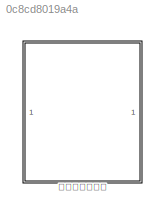
MODEL slx_0c8cd8019a4a
KIND model
CONFIG AbsTol = auto
CONFIG EnableMultiTasking = off
CONFIG FixedStep = auto
CONFIG MaxStep = auto
CONFIG MinStep = auto
CONFIG RelTol = 1e-3
CONFIG SampleTimeConstraint = Unconstrained
CONFIG SolverName = VariableStepAuto
CONFIG StartTime = 0.0
CONFIG StopTime = 10.0
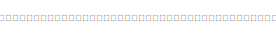
[diagram: 帧信号射频调制 - part 1/2, top center region]
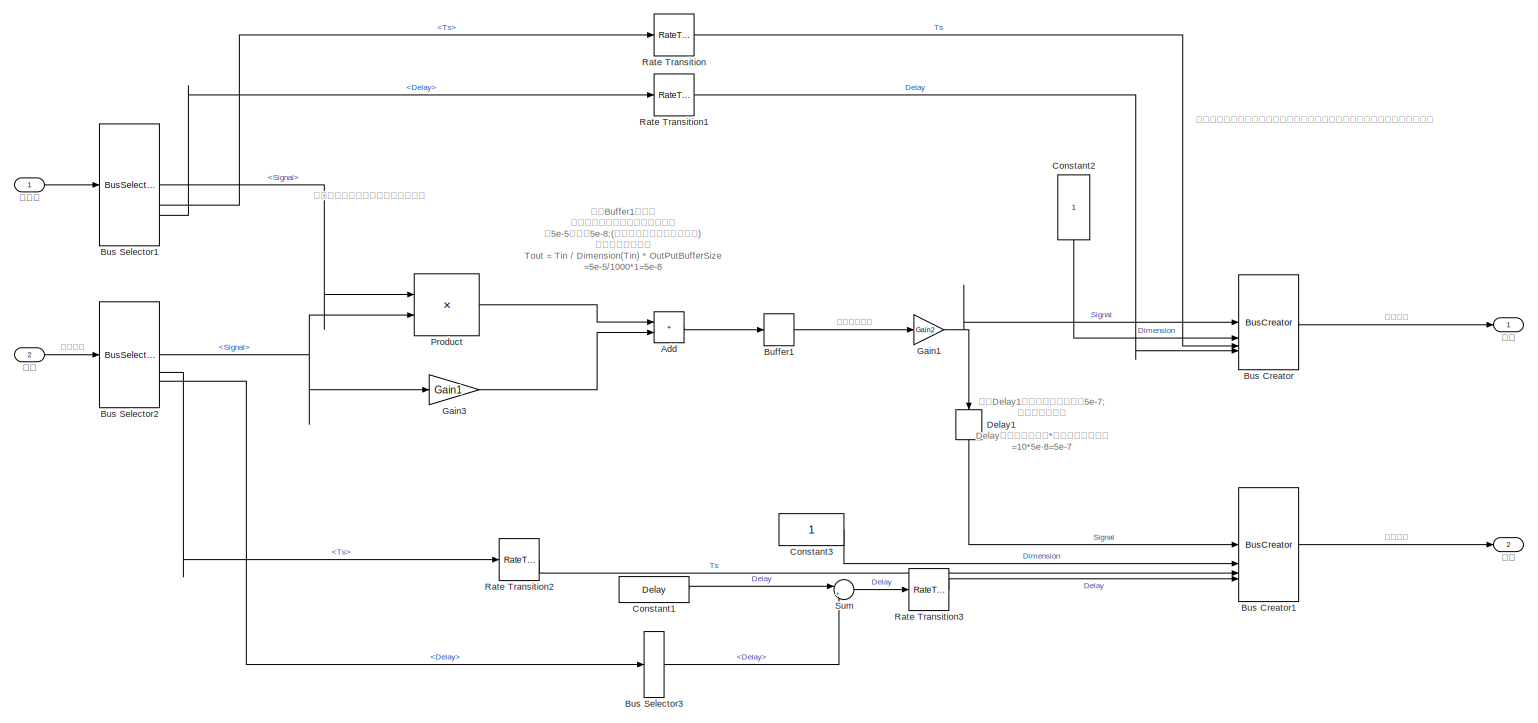
[diagram: 帧信号射频调制 - part 2/2, most of the canvas]
BLOCK [SubSystem] 帧信号射频调制
  AttributesFormatString = 帧头延时 = %<Delay_frameheader>\n帧尾延时 = %<Delay_frameend>\n帧头的采样时间=%<T_frameheader>\n帧尾的采样时间=%<T_frameend>
  TreatAsAtomicUnit = on
BLOCK [Sum] 帧信号射频调制/Add
  IconShape = rectangular
BLOCK [Buffer] 帧信号射频调制/Buffer1
  N = 1
  OutputFrames = off
BLOCK [BusCreator] 帧信号射频调制/Bus Creator
  DisplayOption = bar
  InheritFromInputs = on
  Inputs = Signal,Dimension,Ts,Delay
  NonVirtualBus = on
  OutDataTypeStr = Bus: SignalBus2
BLOCK [BusCreator] 帧信号射频调制/Bus Creator1
  DisplayOption = bar
  InheritFromInputs = on
  Inputs = Signal,Dimension,Ts,Delay
  NonVirtualBus = on
  OutDataTypeStr = Bus: SignalBus2
BLOCK [BusSelector] 帧信号射频调制/Bus Selector1
  OutputSignals = Signal,Ts,Delay
BLOCK [BusSelector] 帧信号射频调制/Bus Selector2
  OutputSignals = Signal,Ts,Delay
BLOCK [BusSelector] 帧信号射频调制/Bus Selector3
  OutputSignals = Delay
BLOCK [Constant] 帧信号射频调制/Constant1
  Value = Delay
BLOCK [Constant] 帧信号射频调制/Constant2
  NameLocation = right
BLOCK [Constant] 帧信号射频调制/Constant3
BLOCK [Delay] 帧信号射频调制/Delay1
  DelayLength = 10
  InputPortMap = u0
  InputProcessing = Columns as channels (frame based)
  NameLocation = right
BLOCK [Gain] 帧信号射频调制/Gain1
  Gain = Gain2
BLOCK [Gain] 帧信号射频调制/Gain3
  Gain = Gain1
BLOCK [Product] 帧信号射频调制/Product
BLOCK [RateTransition] 帧信号射频调制/Rate Transition
BLOCK [RateTransition] 帧信号射频调制/Rate Transition1
BLOCK [RateTransition] 帧信号射频调制/Rate Transition2
BLOCK [RateTransition] 帧信号射频调制/Rate Transition3
BLOCK [Sum] 帧信号射频调制/Sum
  Inputs = |++
BLOCK [Inport] 帧信号射频调制/帧信号
  NameLocation = left
  OutDataTypeStr = Bus: SignalBus1
BLOCK [Outport] 帧信号射频调制/帧头
  OutDataTypeStr = Bus: SignalBus2
BLOCK [Outport] 帧信号射频调制/帧尾
  OutDataTypeStr = Bus: SignalBus2
  Port = 2
BLOCK [Inport] 帧信号射频调制/载波
  NameLocation = left
  OutDataTypeStr = Bus: SignalBus1
  Port = 2
ANNOTATION 帧信号射频调制: 此处 Buffer1 无延时 但是将信号的采样速率进行了改变 从5e-5变成了5e-8;( 慢采样到快采样不产生延时 ) 速率变换公式 为： Tout = Tin / Dimension(Tin) * OutPutBufferSize =5e-5/1000*1=5e-8
ANNOTATION 帧信号射频调制: 由于输入信号的采样速率和输出信号的采样速率不相同，所以在数据传输的过程中需要进行速率转换模块
ANNOTATION 帧信号射频调制: 此处 Delay1 产生帧头和帧为延时5e-7; 计算公式如下： Delay模块的延长长度*该模块的采样速率 =10*5e·8=5e-7
ANNOTATION 帧信号射频调制: 这个模块改变了采样时间，并且把输出信号的维度也进行了改变！！！！！！
ANNOTATION 帧信号射频调制: 射频调制模拟以及部分本地载波相加
LINE 帧信号射频调制/Add:1 -> 帧信号射频调制/Buffer1:1
LINE 帧信号射频调制/Buffer1:1 -> 帧信号射频调制/Gain1:1
LINE 帧信号射频调制/Bus Creator1:1 -> 帧信号射频调制/帧尾:1
LINE 帧信号射频调制/Bus Creator:1 -> 帧信号射频调制/帧头:1
LINE 帧信号射频调制/Bus Selector1:1 -> 帧信号射频调制/Product:1
LINE 帧信号射频调制/Bus Selector1:2 -> 帧信号射频调制/Rate Transition:1
LINE 帧信号射频调制/Bus Selector1:3 -> 帧信号射频调制/Rate Transition1:1
NET 帧信号射频调制/Bus Selector2:1 -> 帧信号射频调制/Gain3:1, 帧信号射频调制/Product:2
LINE 帧信号射频调制/Bus Selector2:2 -> 帧信号射频调制/Rate Transition2:1
LINE 帧信号射频调制/Bus Selector2:3 -> 帧信号射频调制/Bus Selector3:1
LINE 帧信号射频调制/Bus Selector3:1 -> 帧信号射频调制/Sum:2
LINE 帧信号射频调制/Constant1:1 -> 帧信号射频调制/Sum:1
LINE 帧信号射频调制/Constant2:1 -> 帧信号射频调制/Bus Creator:2
LINE 帧信号射频调制/Constant3:1 -> 帧信号射频调制/Bus Creator1:2
LINE 帧信号射频调制/Delay1:1 -> 帧信号射频调制/Bus Creator1:1
NET 帧信号射频调制/Gain1:1 -> 帧信号射频调制/Bus Creator:1, 帧信号射频调制/Delay1:1
LINE 帧信号射频调制/Gain3:1 -> 帧信号射频调制/Add:2
LINE 帧信号射频调制/Product:1 -> 帧信号射频调制/Add:1
LINE 帧信号射频调制/Rate Transition1:1 -> 帧信号射频调制/Bus Creator:4
LINE 帧信号射频调制/Rate Transition2:1 -> 帧信号射频调制/Bus Creator1:3
LINE 帧信号射频调制/Rate Transition3:1 -> 帧信号射频调制/Bus Creator1:4
LINE 帧信号射频调制/Rate Transition:1 -> 帧信号射频调制/Bus Creator:3
LINE 帧信号射频调制/Sum:1 -> 帧信号射频调制/Rate Transition3:1
LINE 帧信号射频调制/帧信号:1 -> 帧信号射频调制/Bus Selector1:1
LINE 帧信号射频调制/载波:1 -> 帧信号射频调制/Bus Selector2:1
note: NET lines group one-source signal fan-out (src -> all destinations, sorted); 1:1 wires keep LINE
